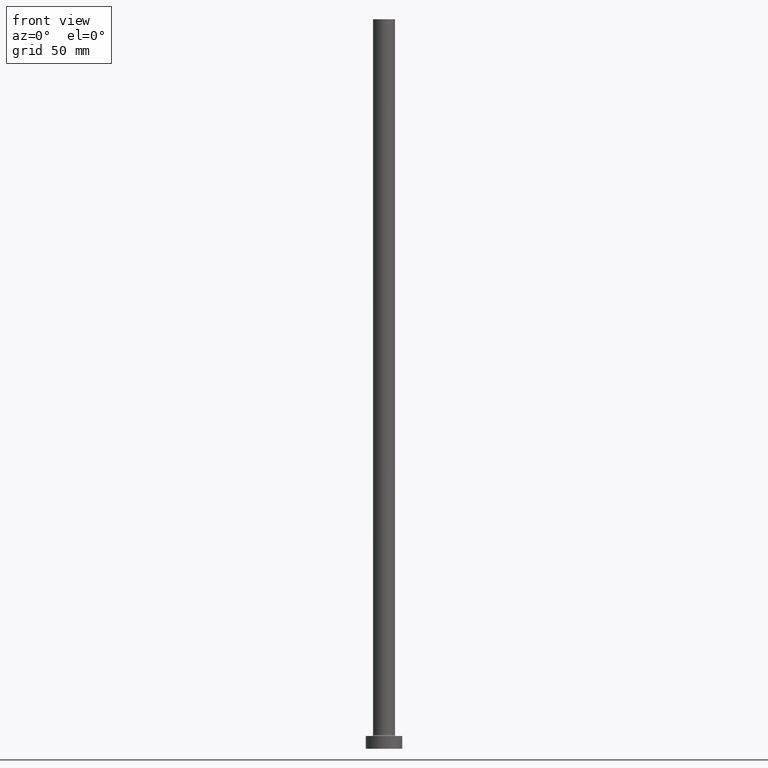
[diagram: clean part render]
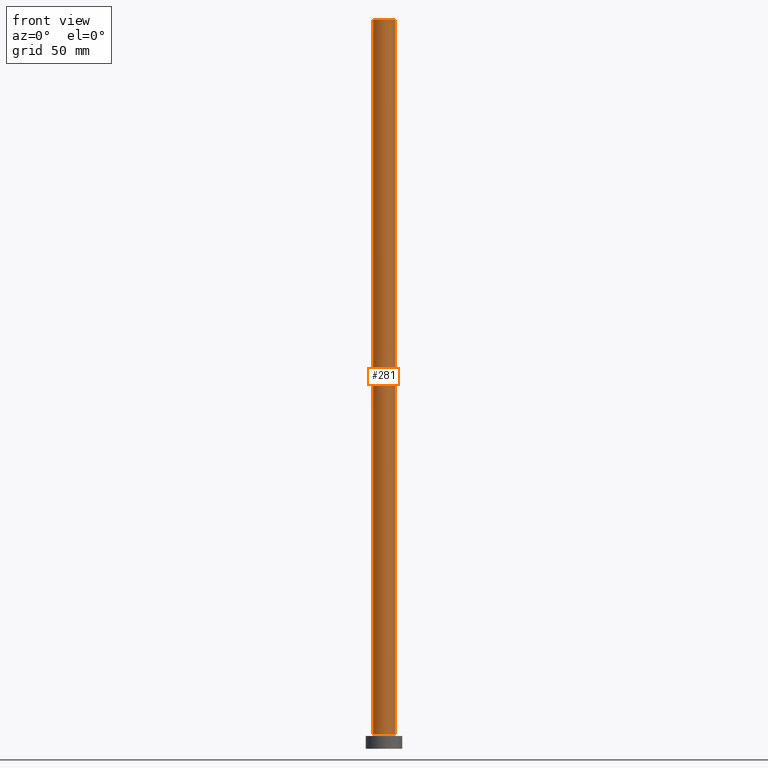
[diagram: same view with one face highlighted and labeled with its STEP entity id]
A machine part, front view. The second image highlights one B-rep face of the part: STEP entity #281.
In plain terms, the highlighted cylindrical surface (edge-blend (fillet) strip) has radius 6 mm, axis along (-0, -0, -1).
Its self-contained STEP definition (entity closure, byte-faithful):
#20 = CIRCLE ( 'NONE', #149, 6.000000000000000888 ) ;
#27 = VERTEX_POINT ( 'NONE', #184 ) ;
#49 = EDGE_CURVE ( 'NONE', #362, #295, #259, .T. ) ;
#52 = AXIS2_PLACEMENT_3D ( 'NONE', #147, #181, #324 ) ;
#71 = ORIENTED_EDGE ( 'NONE', *, *, #397, .T. ) ;
#82 = CIRCLE ( 'NONE', #235, 6.000000000000000888 ) ;
#104 = ORIENTED_EDGE ( 'NONE', *, *, #247, .T. ) ;
#122 = VERTEX_POINT ( 'NONE', #379 ) ;
#126 = DIRECTION ( 'NONE',  ( 0.000000000000000000, 0.000000000000000000, 1.000000000000000000 ) ) ;
#128 = VECTOR ( 'NONE', #273, 1000.000000000000000 ) ;
#131 = CARTESIAN_POINT ( 'NONE',  ( -6.000000000000000888, 0.000000000000000000, 400.0000000000000000 ) ) ;
#147 = CARTESIAN_POINT ( 'NONE',  ( 0.000000000000000000, 0.000000000000000000, 400.0000000000000000 ) ) ;
#149 = AXIS2_PLACEMENT_3D ( 'NONE', #351, #425, #218 ) ;
#150 = CARTESIAN_POINT ( 'NONE',  ( 6.000000000000000888, 7.347880794884120722E-16, 400.0000000000000000 ) ) ;
#181 = DIRECTION ( 'NONE',  ( -0.000000000000000000, -0.000000000000000000, -1.000000000000000000 ) ) ;
#184 = CARTESIAN_POINT ( 'NONE',  ( -6.000000000000000888, 0.000000000000000000, 7.699999999999985079 ) ) ;
#186 = ORIENTED_EDGE ( 'NONE', *, *, #360, .F. ) ;
#195 = CARTESIAN_POINT ( 'NONE',  ( 0.000000000000000000, 0.000000000000000000, 7.699999999999985079 ) ) ;
#197 = DIRECTION ( 'NONE',  ( 1.000000000000000000, 0.000000000000000000, 0.000000000000000000 ) ) ;
#218 = DIRECTION ( 'NONE',  ( 1.000000000000000000, 0.000000000000000000, 0.000000000000000000 ) ) ;
#222 = CARTESIAN_POINT ( 'NONE',  ( 6.000000000000000888, 7.347880794884120722E-16, 400.0000000000000000 ) ) ;
#235 = AXIS2_PLACEMENT_3D ( 'NONE', #195, #126, #197 ) ;
#247 = EDGE_CURVE ( 'NONE', #122, #27, #303, .T. ) ;
#259 = LINE ( 'NONE', #222, #411 ) ;
#273 = DIRECTION ( 'NONE',  ( -0.000000000000000000, -0.000000000000000000, -1.000000000000000000 ) ) ;
#281 = ADVANCED_FACE ( 'NONE', ( #426 ), #346, .T. ) ;
#295 = VERTEX_POINT ( 'NONE', #317 ) ;
#298 = ORIENTED_EDGE ( 'NONE', *, *, #49, .F. ) ;
#303 = LINE ( 'NONE', #131, #128 ) ;
#317 = CARTESIAN_POINT ( 'NONE',  ( 6.000000000000000888, 7.347880794884120722E-16, 7.699999999999985079 ) ) ;
#324 = DIRECTION ( 'NONE',  ( -1.000000000000000000, 0.000000000000000000, 0.000000000000000000 ) ) ;
#346 = CYLINDRICAL_SURFACE ( 'NONE', #52, 6.000000000000000888 ) ;
#351 = CARTESIAN_POINT ( 'NONE',  ( 0.000000000000000000, 0.000000000000000000, 400.0000000000000000 ) ) ;
#359 = DIRECTION ( 'NONE',  ( -0.000000000000000000, -0.000000000000000000, -1.000000000000000000 ) ) ;
#360 = EDGE_CURVE ( 'NONE', #122, #362, #20, .T. ) ;
#362 = VERTEX_POINT ( 'NONE', #150 ) ;
#376 = EDGE_LOOP ( 'NONE', ( #298, #186, #104, #71 ) ) ;
#379 = CARTESIAN_POINT ( 'NONE',  ( -6.000000000000000888, 0.000000000000000000, 400.0000000000000000 ) ) ;
#397 = EDGE_CURVE ( 'NONE', #27, #295, #82, .T. ) ;
#411 = VECTOR ( 'NONE', #359, 1000.000000000000000 ) ;
#425 = DIRECTION ( 'NONE',  ( 0.000000000000000000, 0.000000000000000000, 1.000000000000000000 ) ) ;
#426 = FACE_OUTER_BOUND ( 'NONE', #376, .T. ) ;